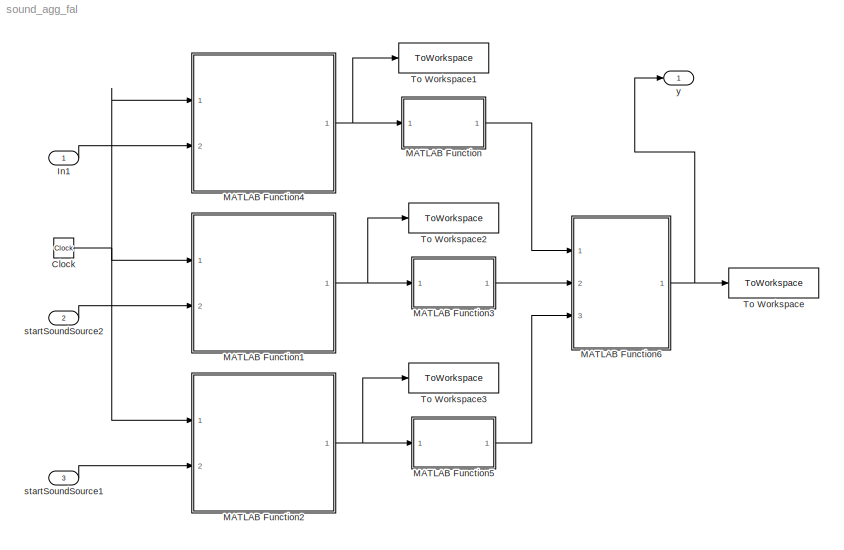
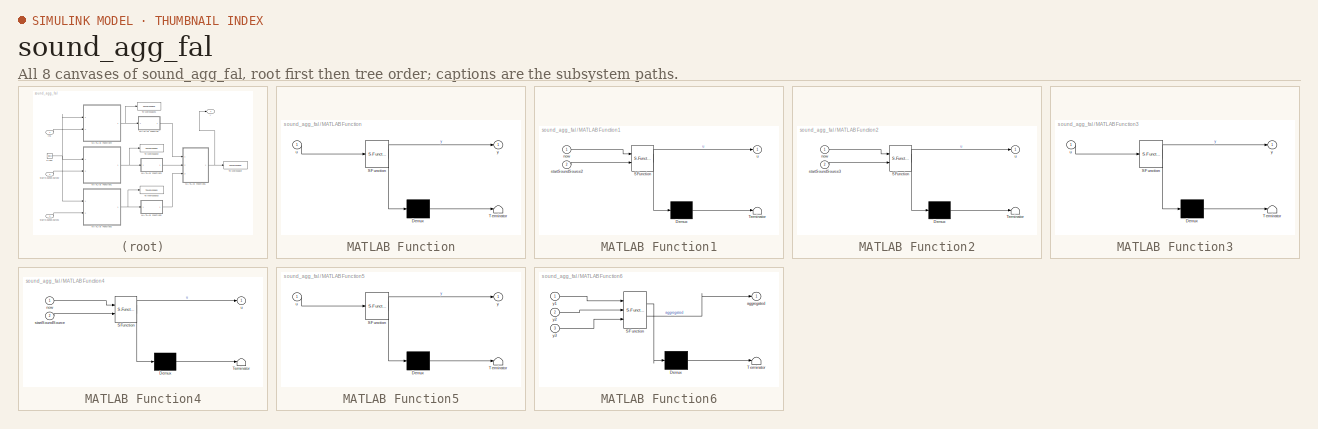
[diagram: thumbnail index - all 8 canvases of the model, root first then tree order]
MODEL sound_agg_fal
KIND model
BLOCK [Clock] Clock
  SID = 109
BLOCK [Inport] In1
  SID = 407
BLOCK [SubSystem] MATLAB Function
  ErrorFcn = Stateflow.Translate.translate
  PermitHierarchicalResolution = ExplicitOnly
  Ports = [1, 1]
  RequestExecContextInheritance = off
  SFBlockType = MATLAB Function
  SID = 405
  TreatAsAtomicUnit = on
BLOCK [Demux] MATLAB Function/ Demux 
  Outputs = 1
  Ports = [1, 1]
  SID = 405::26
BLOCK [S-Function] MATLAB Function/ SFunction 
  EnableBusSupport = on
  FunctionName = sf_sfun
  Parameters = configSoundSource,disSoundSource
  PortCounts = [1 2]
  Ports = [1, 2]
  SFcnIsStateOwnerBlock = off
  SFunctionDeploymentMode = off
  SID = 405::25
  Tag = Stateflow S-Function 2
BLOCK [Terminator] MATLAB Function/ Terminator 
  SID = 405::27
BLOCK [Inport] MATLAB Function/u
  SID = 405::1
BLOCK [Outport] MATLAB Function/y
  SID = 405::5
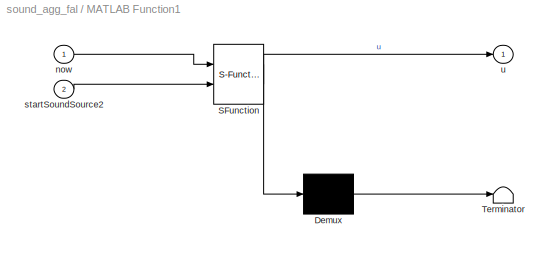
BLOCK [SubSystem] MATLAB Function1
  ErrorFcn = Stateflow.Translate.translate
  PermitHierarchicalResolution = ExplicitOnly
  Ports = [2, 1]
  RequestExecContextInheritance = off
  SFBlockType = MATLAB Function
  SID = 409
  TreatAsAtomicUnit = on
BLOCK [Demux] MATLAB Function1/ Demux 
  Outputs = 1
  Ports = [1, 1]
  SID = 409::33
BLOCK [S-Function] MATLAB Function1/ SFunction 
  EnableBusSupport = on
  FunctionName = sf_sfun
  Parameters = timeSoundSource2
  PortCounts = [2 2]
  Ports = [2, 2]
  SFcnIsStateOwnerBlock = off
  SFunctionDeploymentMode = off
  SID = 409::32
  Tag = Stateflow S-Function 1
BLOCK [Terminator] MATLAB Function1/ Terminator 
  SID = 409::34
BLOCK [Inport] MATLAB Function1/now
  SID = 409::27
BLOCK [Inport] MATLAB Function1/startSoundSource2
  Port = 2
  SID = 409::31
BLOCK [Outport] MATLAB Function1/u
  SID = 409::5
BLOCK [SubSystem] MATLAB Function2
  ErrorFcn = Stateflow.Translate.translate
  PermitHierarchicalResolution = ExplicitOnly
  Ports = [2, 1]
  RequestExecContextInheritance = off
  SFBlockType = MATLAB Function
  SID = 411
  TreatAsAtomicUnit = on
BLOCK [Demux] MATLAB Function2/ Demux 
  Outputs = 1
  Ports = [1, 1]
  SID = 411::33
BLOCK [S-Function] MATLAB Function2/ SFunction 
  EnableBusSupport = on
  FunctionName = sf_sfun
  Parameters = timeSoundSource3
  PortCounts = [2 2]
  Ports = [2, 2]
  SFcnIsStateOwnerBlock = off
  SFunctionDeploymentMode = off
  SID = 411::32
  Tag = Stateflow S-Function 3
BLOCK [Terminator] MATLAB Function2/ Terminator 
  SID = 411::34
BLOCK [Inport] MATLAB Function2/now
  SID = 411::27
BLOCK [Inport] MATLAB Function2/startSoundSource3
  Port = 2
  SID = 411::31
BLOCK [Outport] MATLAB Function2/u
  SID = 411::5
BLOCK [SubSystem] MATLAB Function3
  ErrorFcn = Stateflow.Translate.translate
  PermitHierarchicalResolution = ExplicitOnly
  Ports = [1, 1]
  RequestExecContextInheritance = off
  SFBlockType = MATLAB Function
  SID = 413
  TreatAsAtomicUnit = on
BLOCK [Demux] MATLAB Function3/ Demux 
  Outputs = 1
  Ports = [1, 1]
  SID = 413::26
BLOCK [S-Function] MATLAB Function3/ SFunction 
  EnableBusSupport = on
  FunctionName = sf_sfun
  Parameters = configSoundSource2,disSoundSource2
  PortCounts = [1 2]
  Ports = [1, 2]
  SFcnIsStateOwnerBlock = off
  SFunctionDeploymentMode = off
  SID = 413::25
  Tag = Stateflow S-Function 4
BLOCK [Terminator] MATLAB Function3/ Terminator 
  SID = 413::27
BLOCK [Inport] MATLAB Function3/u
  SID = 413::1
BLOCK [Outport] MATLAB Function3/y
  SID = 413::5
BLOCK [SubSystem] MATLAB Function4
  ErrorFcn = Stateflow.Translate.translate
  PermitHierarchicalResolution = ExplicitOnly
  Ports = [2, 1]
  RequestExecContextInheritance = off
  SFBlockType = MATLAB Function
  SID = 108
  TreatAsAtomicUnit = on
BLOCK [Demux] MATLAB Function4/ Demux 
  Outputs = 1
  Ports = [1, 1]
  SID = 108::33
BLOCK [S-Function] MATLAB Function4/ SFunction 
  EnableBusSupport = on
  FunctionName = sf_sfun
  Parameters = timeSoundSource
  PortCounts = [2 2]
  Ports = [2, 2]
  SFcnIsStateOwnerBlock = off
  SFunctionDeploymentMode = off
  SID = 108::32
  Tag = Stateflow S-Function 5
BLOCK [Terminator] MATLAB Function4/ Terminator 
  SID = 108::34
BLOCK [Inport] MATLAB Function4/now
  SID = 108::27
BLOCK [Inport] MATLAB Function4/startSoundSource
  Port = 2
  SID = 108::31
BLOCK [Outport] MATLAB Function4/u
  SID = 108::5
BLOCK [SubSystem] MATLAB Function5
  ErrorFcn = Stateflow.Translate.translate
  PermitHierarchicalResolution = ExplicitOnly
  Ports = [1, 1]
  RequestExecContextInheritance = off
  SFBlockType = MATLAB Function
  SID = 415
  TreatAsAtomicUnit = on
BLOCK [Demux] MATLAB Function5/ Demux 
  Outputs = 1
  Ports = [1, 1]
  SID = 415::26
BLOCK [S-Function] MATLAB Function5/ SFunction 
  EnableBusSupport = on
  FunctionName = sf_sfun
  Parameters = configSoundSource3,disSoundSource3
  PortCounts = [1 2]
  Ports = [1, 2]
  SFcnIsStateOwnerBlock = off
  SFunctionDeploymentMode = off
  SID = 415::25
  Tag = Stateflow S-Function 6
BLOCK [Terminator] MATLAB Function5/ Terminator 
  SID = 415::27
BLOCK [Inport] MATLAB Function5/u
  SID = 415::1
BLOCK [Outport] MATLAB Function5/y
  SID = 415::5
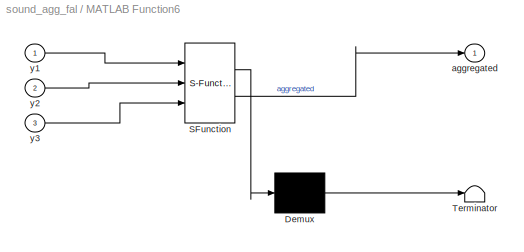
BLOCK [SubSystem] MATLAB Function6
  ErrorFcn = Stateflow.Translate.translate
  PermitHierarchicalResolution = ExplicitOnly
  Ports = [3, 1]
  RequestExecContextInheritance = off
  SFBlockType = MATLAB Function
  SID = 417
  TreatAsAtomicUnit = on
BLOCK [Demux] MATLAB Function6/ Demux 
  Outputs = 1
  Ports = [1, 1]
  SID = 417::26
BLOCK [S-Function] MATLAB Function6/ SFunction 
  EnableBusSupport = on
  FunctionName = sf_sfun
  PortCounts = [3 2]
  Ports = [3, 2]
  SFcnIsStateOwnerBlock = off
  SFunctionDeploymentMode = off
  SID = 417::25
  Tag = Stateflow S-Function 7
BLOCK [Terminator] MATLAB Function6/ Terminator 
  SID = 417::27
BLOCK [Outport] MATLAB Function6/aggregated
  SID = 417::5
BLOCK [Inport] MATLAB Function6/y1
  SID = 417::1
BLOCK [Inport] MATLAB Function6/y2
  Port = 2
  SID = 417::28
BLOCK [Inport] MATLAB Function6/y3
  Port = 3
  SID = 417::29
BLOCK [ToWorkspace] To Workspace
  FixptAsFi = on
  MaxDataPoints = inf
  Ports = [1]
  SID = 93
  SampleTime = -1
  VariableName = soundDb
BLOCK [ToWorkspace] To Workspace1
  FixptAsFi = on
  MaxDataPoints = inf
  Ports = [1]
  SID = 406
  SampleTime = -1
  VariableName = soundSourceOn
BLOCK [ToWorkspace] To Workspace2
  FixptAsFi = on
  MaxDataPoints = inf
  Ports = [1]
  SID = 414
  SampleTime = -1
  VariableName = soundSourceOn2
BLOCK [ToWorkspace] To Workspace3
  FixptAsFi = on
  MaxDataPoints = inf
  Ports = [1]
  SID = 416
  SampleTime = -1
  VariableName = soundSourceOn3
BLOCK [Inport] startSoundSource1
  Port = 3
  SID = 412
BLOCK [Inport] startSoundSource2
  Port = 2
  SID = 410
BLOCK [Outport] y
  SID = 408
NET Clock:1 -> MATLAB Function1:1, MATLAB Function2:1, MATLAB Function4:1
LINE In1:1 -> MATLAB Function4:2
LINE MATLAB Function/ Demux :1 -> MATLAB Function/ Terminator :1
LINE MATLAB Function/ SFunction :1 -> MATLAB Function/ Demux :1
LINE MATLAB Function/ SFunction :2 -> MATLAB Function/y:1
LINE MATLAB Function/u:1 -> MATLAB Function/ SFunction :1
LINE MATLAB Function1/ Demux :1 -> MATLAB Function1/ Terminator :1
LINE MATLAB Function1/ SFunction :1 -> MATLAB Function1/ Demux :1
LINE MATLAB Function1/ SFunction :2 -> MATLAB Function1/u:1
LINE MATLAB Function1/now:1 -> MATLAB Function1/ SFunction :1
LINE MATLAB Function1/startSoundSource2:1 -> MATLAB Function1/ SFunction :2
NET MATLAB Function1:1 -> MATLAB Function3:1, To Workspace2:1
LINE MATLAB Function2/ Demux :1 -> MATLAB Function2/ Terminator :1
LINE MATLAB Function2/ SFunction :1 -> MATLAB Function2/ Demux :1
LINE MATLAB Function2/ SFunction :2 -> MATLAB Function2/u:1
LINE MATLAB Function2/now:1 -> MATLAB Function2/ SFunction :1
LINE MATLAB Function2/startSoundSource3:1 -> MATLAB Function2/ SFunction :2
NET MATLAB Function2:1 -> MATLAB Function5:1, To Workspace3:1
LINE MATLAB Function3/ Demux :1 -> MATLAB Function3/ Terminator :1
LINE MATLAB Function3/ SFunction :1 -> MATLAB Function3/ Demux :1
LINE MATLAB Function3/ SFunction :2 -> MATLAB Function3/y:1
LINE MATLAB Function3/u:1 -> MATLAB Function3/ SFunction :1
LINE MATLAB Function3:1 -> MATLAB Function6:2
LINE MATLAB Function4/ Demux :1 -> MATLAB Function4/ Terminator :1
LINE MATLAB Function4/ SFunction :1 -> MATLAB Function4/ Demux :1
LINE MATLAB Function4/ SFunction :2 -> MATLAB Function4/u:1
LINE MATLAB Function4/now:1 -> MATLAB Function4/ SFunction :1
LINE MATLAB Function4/startSoundSource:1 -> MATLAB Function4/ SFunction :2
NET MATLAB Function4:1 -> MATLAB Function:1, To Workspace1:1
LINE MATLAB Function5/ Demux :1 -> MATLAB Function5/ Terminator :1
LINE MATLAB Function5/ SFunction :1 -> MATLAB Function5/ Demux :1
LINE MATLAB Function5/ SFunction :2 -> MATLAB Function5/y:1
LINE MATLAB Function5/u:1 -> MATLAB Function5/ SFunction :1
LINE MATLAB Function5:1 -> MATLAB Function6:3
LINE MATLAB Function6/ Demux :1 -> MATLAB Function6/ Terminator :1
LINE MATLAB Function6/ SFunction :1 -> MATLAB Function6/ Demux :1
LINE MATLAB Function6/ SFunction :2 -> MATLAB Function6/aggregated:1
LINE MATLAB Function6/y1:1 -> MATLAB Function6/ SFunction :1
LINE MATLAB Function6/y2:1 -> MATLAB Function6/ SFunction :2
LINE MATLAB Function6/y3:1 -> MATLAB Function6/ SFunction :3
NET MATLAB Function6:1 -> To Workspace:1, y:1
LINE MATLAB Function:1 -> MATLAB Function6:1
LINE startSoundSource1:1 -> MATLAB Function2:2
LINE startSoundSource2:1 -> MATLAB Function1:2
note: NET lines group one-source signal fan-out (src -> all destinations, sorted); 1:1 wires keep LINE
CHART MATLAB Function1 states=1 transitions=1
  STATE_LABEL 'eML_blk_kernel()'
CHART MATLAB Function states=1 transitions=1
  STATE_LABEL 'eML_blk_kernel()'
CHART MATLAB Function2 states=1 transitions=1
  STATE_LABEL 'eML_blk_kernel()'
CHART MATLAB Function3 states=1 transitions=1
  STATE_LABEL 'eML_blk_kernel()'
CHART MATLAB Function4 states=1 transitions=1
  STATE_LABEL 'eML_blk_kernel()'
CHART MATLAB Function5 states=1 transitions=1
  STATE_LABEL 'eML_blk_kernel()'
CHART MATLAB Function6 states=1 transitions=1
  STATE_LABEL 'eML_blk_kernel()'
